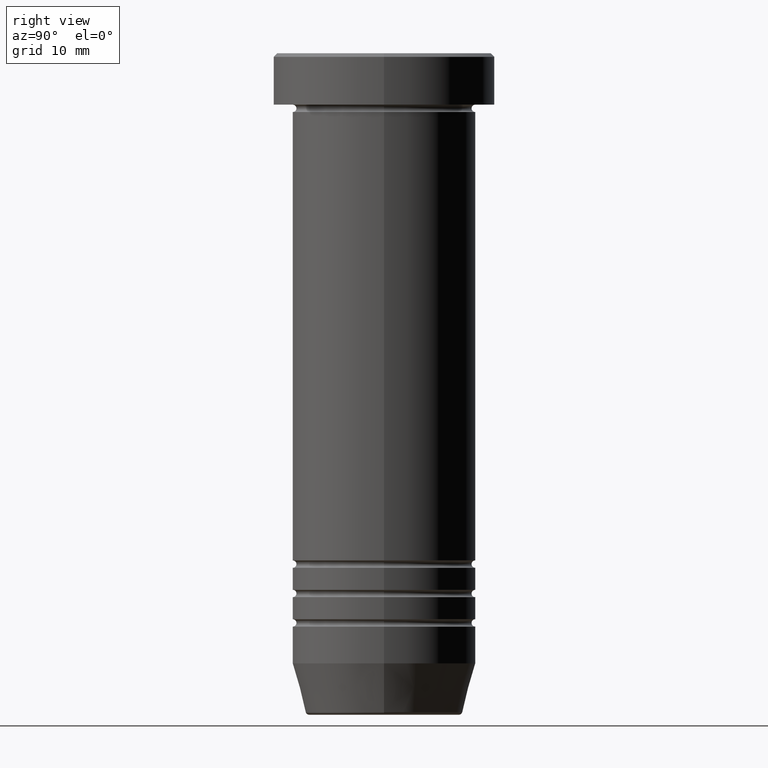
[diagram: clean part render]
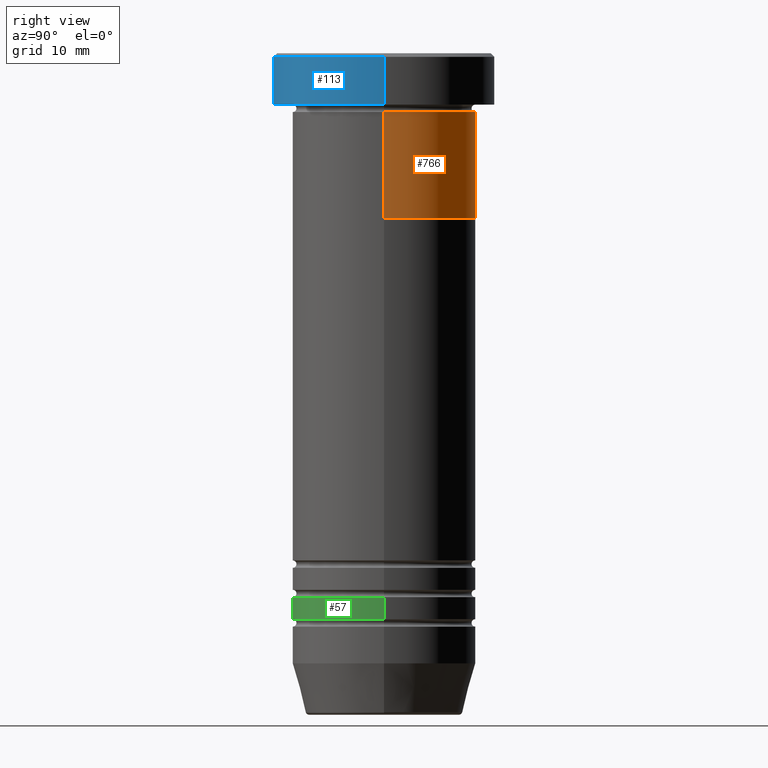
[diagram: same view with three faces highlighted in distinct colors, each labeled with its STEP entity id]
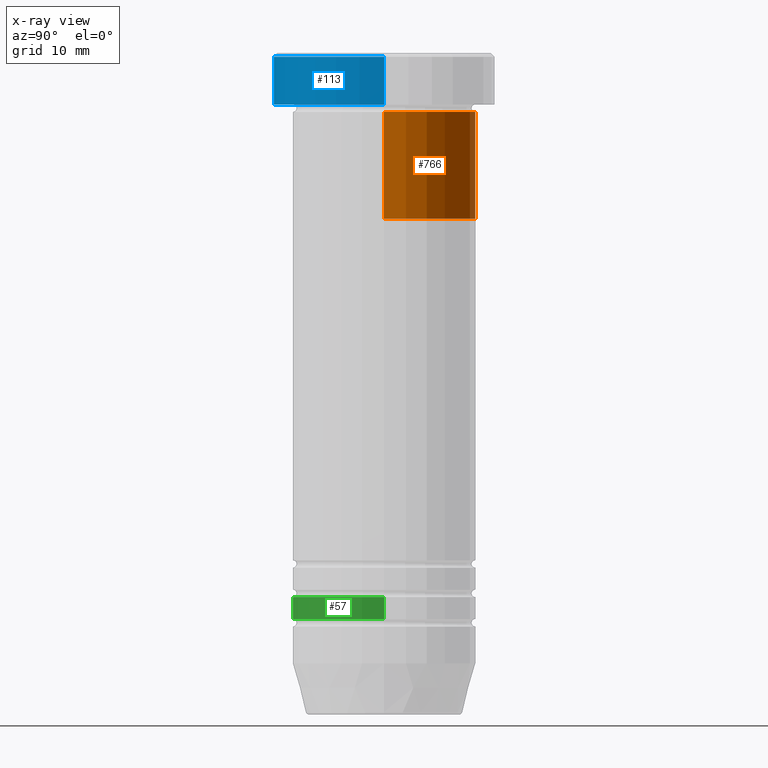
[diagram: x-ray of the same camera — body ghosted, the three highlighted faces saturated]
A machine part, right view with three faces highlighted in distinct colors.
The next image is the same camera in x-ray (body ghosted, the three faces saturated) — at least one of them is partly hidden behind the body in this view.
Their STEP definitions:

[orange] entity #766 — the highlighted cylindrical surface (partial cylindrical patch) has radius 12.5 mm, axis along (-0, -0, 1).
#29 = VECTOR ( 'NONE', #516, 1000.000000000000000 ) ;
#63 = DIRECTION ( 'NONE',  ( -0.000000000000000000, -0.000000000000000000, 1.000000000000000000 ) ) ;
#98 = VERTEX_POINT ( 'NONE', #866 ) ;
#132 = VERTEX_POINT ( 'NONE', #739 ) ;
#208 = DIRECTION ( 'NONE',  ( 1.000000000000000000, 0.000000000000000000, 0.000000000000000000 ) ) ;
#230 = DIRECTION ( 'NONE',  ( 1.000000000000000000, 0.000000000000000000, 0.000000000000000000 ) ) ;
#283 = CARTESIAN_POINT ( 'NONE',  ( 0.000000000000000000, 0.000000000000000000, -22.50000000000000000 ) ) ;
#295 = CARTESIAN_POINT ( 'NONE',  ( 0.000000000000000000, 0.000000000000000000, -8.000000000000000000 ) ) ;
#349 = CIRCLE ( 'NONE', #854, 12.50000000000000000 ) ;
#366 = VECTOR ( 'NONE', #906, 1000.000000000000000 ) ;
#370 = EDGE_CURVE ( 'NONE', #132, #98, #349, .T. ) ;
#390 = ORIENTED_EDGE ( 'NONE', *, *, #370, .T. ) ;
#398 = DIRECTION ( 'NONE',  ( 1.000000000000000000, 0.000000000000000000, 0.000000000000000000 ) ) ;
#407 = CYLINDRICAL_SURFACE ( 'NONE', #828, 12.50000000000000000 ) ;
#469 = EDGE_CURVE ( 'NONE', #98, #782, #971, .T. ) ;
#473 = EDGE_LOOP ( 'NONE', ( #390, #625, #801, #1004 ) ) ;
#483 = FACE_OUTER_BOUND ( 'NONE', #473, .T. ) ;
#494 = AXIS2_PLACEMENT_3D ( 'NONE', #295, #793, #230 ) ;
#508 = LINE ( 'NONE', #923, #29 ) ;
#516 = DIRECTION ( 'NONE',  ( -0.000000000000000000, -0.000000000000000000, 1.000000000000000000 ) ) ;
#625 = ORIENTED_EDGE ( 'NONE', *, *, #469, .T. ) ;
#627 = EDGE_CURVE ( 'NONE', #132, #803, #508, .T. ) ;
#715 = DIRECTION ( 'NONE',  ( -0.000000000000000000, -0.000000000000000000, 1.000000000000000000 ) ) ;
#729 = CARTESIAN_POINT ( 'NONE',  ( 0.000000000000000000, 0.000000000000000000, 0.000000000000000000 ) ) ;
#730 = EDGE_CURVE ( 'NONE', #803, #782, #952, .T. ) ;
#739 = CARTESIAN_POINT ( 'NONE',  ( 12.50000000000000000, 0.000000000000000000, -22.50000000000000000 ) ) ;
#766 = ADVANCED_FACE ( 'NONE', ( #483 ), #407, .T. ) ;
#782 = VERTEX_POINT ( 'NONE', #797 ) ;
#793 = DIRECTION ( 'NONE',  ( -0.000000000000000000, -0.000000000000000000, 1.000000000000000000 ) ) ;
#797 = CARTESIAN_POINT ( 'NONE',  ( -12.50000000000000000, 1.530808498934191521E-15, -8.000000000000000000 ) ) ;
#801 = ORIENTED_EDGE ( 'NONE', *, *, #730, .F. ) ;
#803 = VERTEX_POINT ( 'NONE', #995 ) ;
#817 = CARTESIAN_POINT ( 'NONE',  ( -12.50000000000000000, 1.530808498934191521E-15, 0.000000000000000000 ) ) ;
#828 = AXIS2_PLACEMENT_3D ( 'NONE', #729, #715, #398 ) ;
#854 = AXIS2_PLACEMENT_3D ( 'NONE', #283, #63, #208 ) ;
#866 = CARTESIAN_POINT ( 'NONE',  ( -12.50000000000000000, 1.530808498934191521E-15, -22.50000000000000000 ) ) ;
#906 = DIRECTION ( 'NONE',  ( -0.000000000000000000, -0.000000000000000000, 1.000000000000000000 ) ) ;
#923 = CARTESIAN_POINT ( 'NONE',  ( 12.50000000000000000, 0.000000000000000000, 0.000000000000000000 ) ) ;
#952 = CIRCLE ( 'NONE', #494, 12.50000000000000000 ) ;
#971 = LINE ( 'NONE', #817, #366 ) ;
#995 = CARTESIAN_POINT ( 'NONE',  ( 12.50000000000000000, 0.000000000000000000, -8.000000000000000000 ) ) ;
#1004 = ORIENTED_EDGE ( 'NONE', *, *, #627, .F. ) ;

[blue] entity #113 — the highlighted cylindrical surface (partial cylindrical patch) has radius 15 mm, axis along (-0, -0, 1).
#4 = DIRECTION ( 'NONE',  ( -0.000000000000000000, -0.000000000000000000, 1.000000000000000000 ) ) ;
#9 = ORIENTED_EDGE ( 'NONE', *, *, #566, .T. ) ;
#68 = CIRCLE ( 'NONE', #123, 15.00000000000000000 ) ;
#76 = DIRECTION ( 'NONE',  ( 1.000000000000000000, 0.000000000000000000, 0.000000000000000000 ) ) ;
#104 = LINE ( 'NONE', #910, #606 ) ;
#110 = DIRECTION ( 'NONE',  ( -0.000000000000000000, -0.000000000000000000, 1.000000000000000000 ) ) ;
#113 = ADVANCED_FACE ( 'NONE', ( #291 ), #294, .T. ) ;
#123 = AXIS2_PLACEMENT_3D ( 'NONE', #418, #515, #431 ) ;
#164 = VERTEX_POINT ( 'NONE', #637 ) ;
#182 = DIRECTION ( 'NONE',  ( -0.000000000000000000, -0.000000000000000000, 1.000000000000000000 ) ) ;
#184 = EDGE_LOOP ( 'NONE', ( #405, #571, #9, #740 ) ) ;
#186 = CARTESIAN_POINT ( 'NONE',  ( -15.00000000000000000, 1.836970198721029589E-15, -6.999999999999998224 ) ) ;
#217 = DIRECTION ( 'NONE',  ( 1.000000000000000000, 0.000000000000000000, 0.000000000000000000 ) ) ;
#258 = CARTESIAN_POINT ( 'NONE',  ( -15.00000000000000000, 1.836970198721029589E-15, -0.4999999999999970024 ) ) ;
#291 = FACE_OUTER_BOUND ( 'NONE', #184, .T. ) ;
#294 = CYLINDRICAL_SURFACE ( 'NONE', #902, 15.00000000000000000 ) ;
#405 = ORIENTED_EDGE ( 'NONE', *, *, #651, .F. ) ;
#418 = CARTESIAN_POINT ( 'NONE',  ( 0.000000000000000000, 0.000000000000000000, -0.4999999999999970024 ) ) ;
#431 = DIRECTION ( 'NONE',  ( 1.000000000000000000, 0.000000000000000000, 0.000000000000000000 ) ) ;
#441 = VECTOR ( 'NONE', #110, 1000.000000000000000 ) ;
#515 = DIRECTION ( 'NONE',  ( 0.000000000000000000, 0.000000000000000000, -1.000000000000000000 ) ) ;
#562 = CARTESIAN_POINT ( 'NONE',  ( 0.000000000000000000, 0.000000000000000000, -6.999999999999998224 ) ) ;
#563 = VERTEX_POINT ( 'NONE', #258 ) ;
#566 = EDGE_CURVE ( 'NONE', #918, #164, #836, .T. ) ;
#571 = ORIENTED_EDGE ( 'NONE', *, *, #755, .T. ) ;
#578 = CIRCLE ( 'NONE', #746, 15.00000000000000000 ) ;
#606 = VECTOR ( 'NONE', #182, 1000.000000000000000 ) ;
#617 = CARTESIAN_POINT ( 'NONE',  ( 0.000000000000000000, 0.000000000000000000, 0.000000000000000000 ) ) ;
#618 = VERTEX_POINT ( 'NONE', #186 ) ;
#637 = CARTESIAN_POINT ( 'NONE',  ( 15.00000000000000000, 0.000000000000000000, -0.4999999999999970024 ) ) ;
#651 = EDGE_CURVE ( 'NONE', #618, #563, #104, .T. ) ;
#695 = CARTESIAN_POINT ( 'NONE',  ( 15.00000000000000000, 0.000000000000000000, -6.999999999999998224 ) ) ;
#740 = ORIENTED_EDGE ( 'NONE', *, *, #805, .T. ) ;
#746 = AXIS2_PLACEMENT_3D ( 'NONE', #562, #4, #76 ) ;
#755 = EDGE_CURVE ( 'NONE', #618, #918, #578, .T. ) ;
#805 = EDGE_CURVE ( 'NONE', #164, #563, #68, .T. ) ;
#836 = LINE ( 'NONE', #985, #441 ) ;
#902 = AXIS2_PLACEMENT_3D ( 'NONE', #617, #944, #217 ) ;
#910 = CARTESIAN_POINT ( 'NONE',  ( -15.00000000000000000, 1.836970198721029589E-15, 0.000000000000000000 ) ) ;
#918 = VERTEX_POINT ( 'NONE', #695 ) ;
#944 = DIRECTION ( 'NONE',  ( -0.000000000000000000, -0.000000000000000000, 1.000000000000000000 ) ) ;
#985 = CARTESIAN_POINT ( 'NONE',  ( 15.00000000000000000, 0.000000000000000000, 0.000000000000000000 ) ) ;

[green] entity #57 — the highlighted cylindrical surface (partial cylindrical patch) has radius 12.5 mm, axis along (-0, -0, 1).
#2 = DIRECTION ( 'NONE',  ( -0.000000000000000000, -0.000000000000000000, 1.000000000000000000 ) ) ;
#21 = DIRECTION ( 'NONE',  ( -0.000000000000000000, -0.000000000000000000, 1.000000000000000000 ) ) ;
#41 = LINE ( 'NONE', #360, #976 ) ;
#57 = ADVANCED_FACE ( 'NONE', ( #1047 ), #874, .T. ) ;
#73 = DIRECTION ( 'NONE',  ( -0.000000000000000000, -0.000000000000000000, 1.000000000000000000 ) ) ;
#147 = DIRECTION ( 'NONE',  ( -0.000000000000000000, -0.000000000000000000, 1.000000000000000000 ) ) ;
#176 = EDGE_CURVE ( 'NONE', #215, #827, #474, .T. ) ;
#196 = CARTESIAN_POINT ( 'NONE',  ( -12.49999999999999289, 1.530808498934190930E-15, -76.99999999999998579 ) ) ;
#215 = VERTEX_POINT ( 'NONE', #393 ) ;
#238 = CARTESIAN_POINT ( 'NONE',  ( -12.49999999999999645, 1.530808498934191127E-15, 0.000000000000000000 ) ) ;
#300 = AXIS2_PLACEMENT_3D ( 'NONE', #305, #147, #799 ) ;
#305 = CARTESIAN_POINT ( 'NONE',  ( 0.000000000000000000, 0.000000000000000000, 0.000000000000000000 ) ) ;
#314 = ORIENTED_EDGE ( 'NONE', *, *, #975, .T. ) ;
#360 = CARTESIAN_POINT ( 'NONE',  ( 12.49999999999999645, 0.000000000000000000, 0.000000000000000000 ) ) ;
#382 = VECTOR ( 'NONE', #73, 1000.000000000000000 ) ;
#393 = CARTESIAN_POINT ( 'NONE',  ( -12.50000000000000000, 1.530808498934191521E-15, -73.99999999999998579 ) ) ;
#403 = LINE ( 'NONE', #238, #382 ) ;
#474 = CIRCLE ( 'NONE', #966, 12.50000000000000000 ) ;
#491 = AXIS2_PLACEMENT_3D ( 'NONE', #756, #21, #996 ) ;
#503 = EDGE_CURVE ( 'NONE', #857, #215, #403, .T. ) ;
#531 = DIRECTION ( 'NONE',  ( -0.000000000000000000, -0.000000000000000000, 1.000000000000000000 ) ) ;
#569 = EDGE_CURVE ( 'NONE', #857, #962, #743, .T. ) ;
#718 = ORIENTED_EDGE ( 'NONE', *, *, #176, .F. ) ;
#727 = CARTESIAN_POINT ( 'NONE',  ( 0.000000000000000000, 0.000000000000000000, -73.99999999999998579 ) ) ;
#743 = CIRCLE ( 'NONE', #491, 12.49999999999999289 ) ;
#756 = CARTESIAN_POINT ( 'NONE',  ( 0.000000000000000000, 0.000000000000000000, -76.99999999999998579 ) ) ;
#799 = DIRECTION ( 'NONE',  ( 1.000000000000000000, 0.000000000000000000, 0.000000000000000000 ) ) ;
#822 = ORIENTED_EDGE ( 'NONE', *, *, #569, .T. ) ;
#824 = DIRECTION ( 'NONE',  ( 1.000000000000000000, 0.000000000000000000, 0.000000000000000000 ) ) ;
#827 = VERTEX_POINT ( 'NONE', #830 ) ;
#830 = CARTESIAN_POINT ( 'NONE',  ( 12.50000000000000000, 0.000000000000000000, -73.99999999999998579 ) ) ;
#857 = VERTEX_POINT ( 'NONE', #196 ) ;
#874 = CYLINDRICAL_SURFACE ( 'NONE', #300, 12.49999999999999645 ) ;
#894 = EDGE_LOOP ( 'NONE', ( #972, #822, #314, #718 ) ) ;
#962 = VERTEX_POINT ( 'NONE', #1028 ) ;
#966 = AXIS2_PLACEMENT_3D ( 'NONE', #727, #2, #824 ) ;
#972 = ORIENTED_EDGE ( 'NONE', *, *, #503, .F. ) ;
#975 = EDGE_CURVE ( 'NONE', #962, #827, #41, .T. ) ;
#976 = VECTOR ( 'NONE', #531, 1000.000000000000000 ) ;
#996 = DIRECTION ( 'NONE',  ( 1.000000000000000000, 0.000000000000000000, 0.000000000000000000 ) ) ;
#1028 = CARTESIAN_POINT ( 'NONE',  ( 12.49999999999999289, 0.000000000000000000, -76.99999999999998579 ) ) ;
#1047 = FACE_OUTER_BOUND ( 'NONE', #894, .T. ) ;